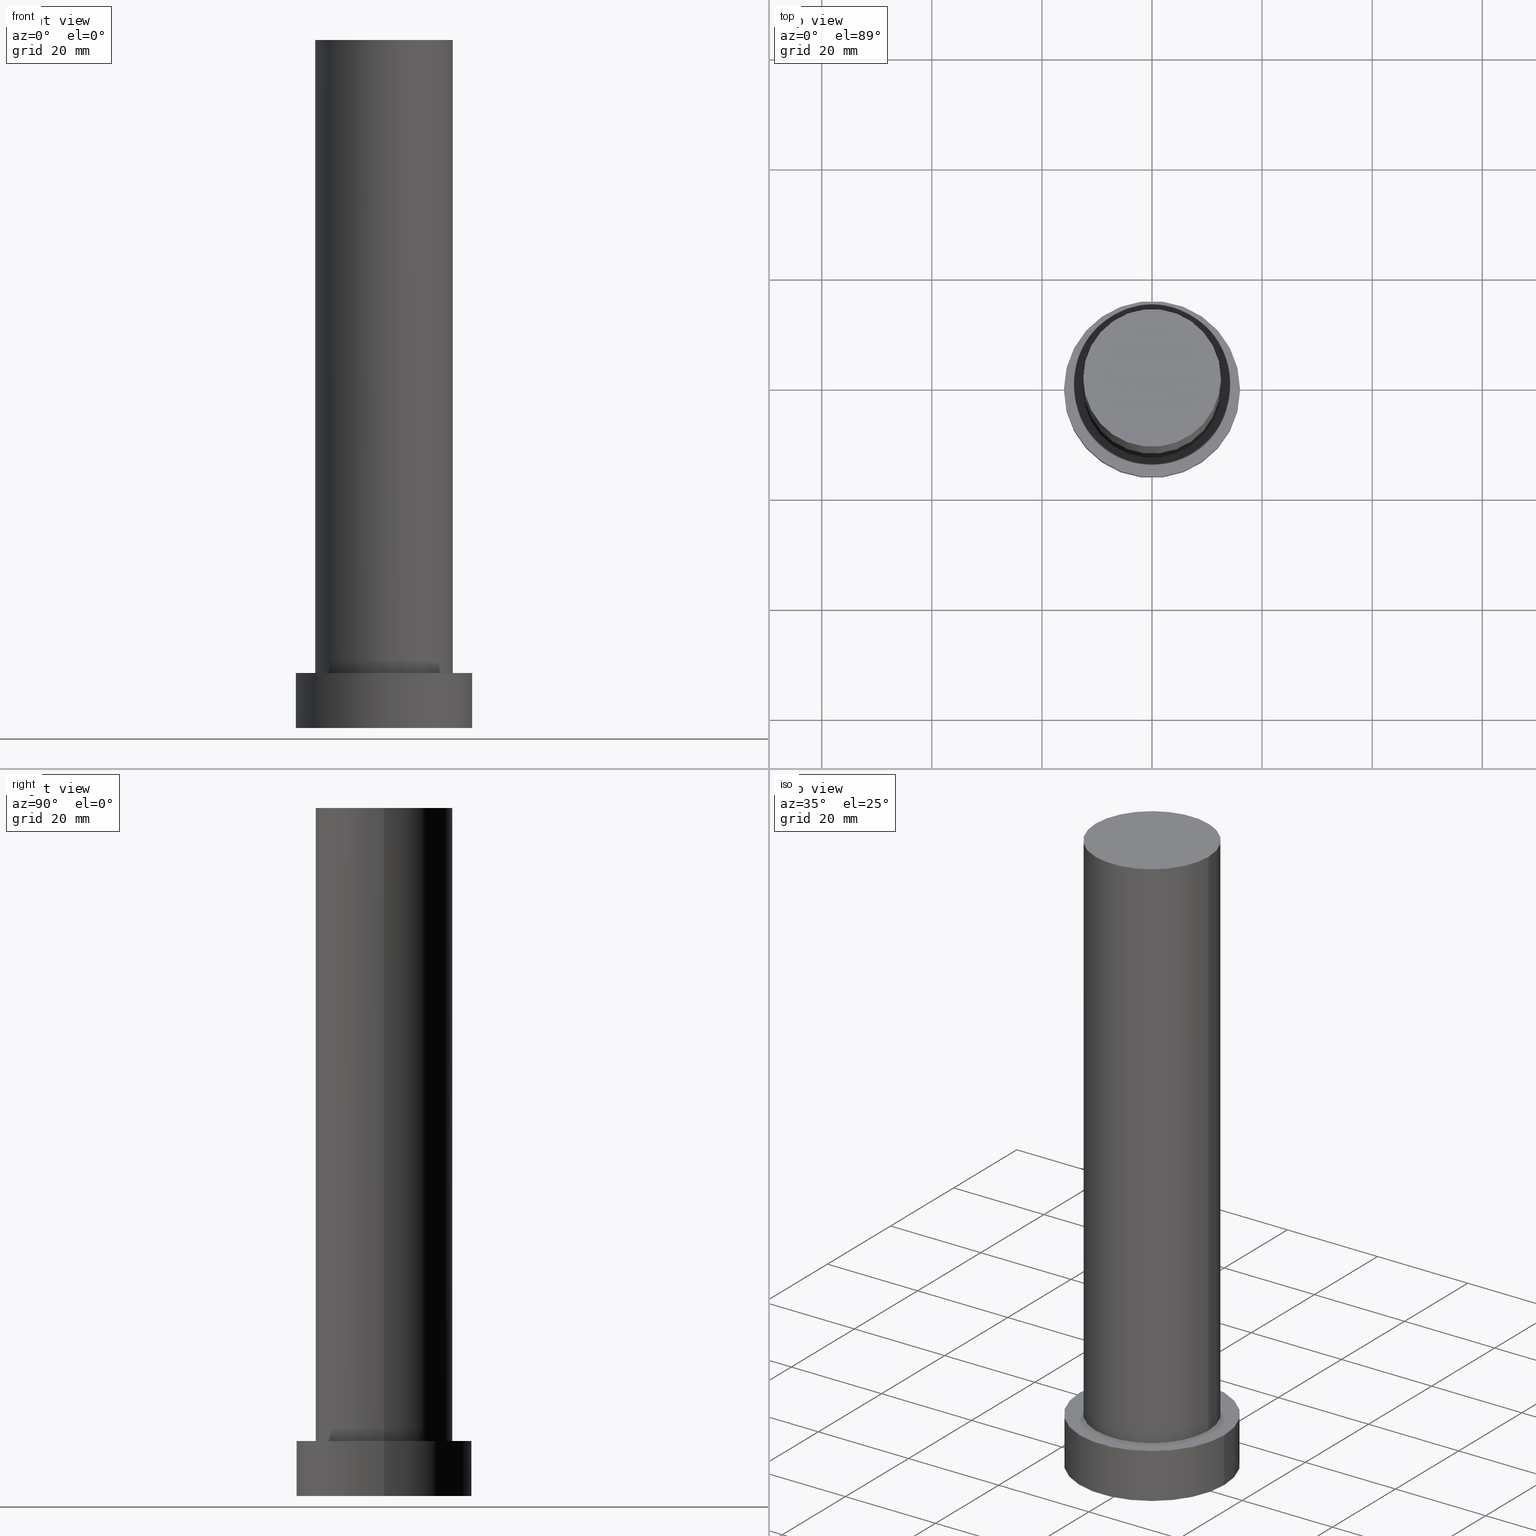
[diagram: canonical four-view strip — front | top / right | iso, engineering-drawing reading convention]
A machine part, canonical four-view strip (front | top / right | iso — engineering-drawing reading convention). The complete STEP part file that produces these views, byte-faithful:
ISO-10303-21;
HEADER;
FILE_DESCRIPTION (( 'STEP AP203' ),
    '1' );
FILE_NAME ('2aaf.STEP',
    '2023-02-12T10:30:42',
    ( '' ),
    ( '' ),
    'SwSTEP 2.0',
    'SolidWorks 2019',
    '' );
FILE_SCHEMA (( 'CONFIG_CONTROL_DESIGN' ));
ENDSEC;

DATA;
#1 = DIRECTION ( 'NONE',  ( -1.000000000000000000, 0.000000000000000000, 0.000000000000000000 ) ) ;
#2 = ORIENTED_EDGE ( 'NONE', *, *, #53, .F. ) ;
#3 = PERSON_AND_ORGANIZATION_ROLE ( 'creator' ) ;
#4 = COORDINATED_UNIVERSAL_TIME_OFFSET ( 1, 0, .AHEAD. ) ;
#5 = CALENDAR_DATE ( 2023, 12, 2 ) ;
#6 = CARTESIAN_POINT ( 'NONE',  ( 16.00000000000000000, 1.959434878635765131E-15, 0.000000000000000000 ) ) ;
#7 = CC_DESIGN_DATE_AND_TIME_ASSIGNMENT ( #169, #150, ( #107 ) ) ;
#8 = DIRECTION ( 'NONE',  ( -0.000000000000000000, -0.000000000000000000, -1.000000000000000000 ) ) ;
#9 = DIRECTION ( 'NONE',  ( 1.000000000000000000, 0.000000000000000000, 0.000000000000000000 ) ) ;
#10 = AXIS2_PLACEMENT_3D ( 'NONE', #58, #194, #1 ) ;
#11 = CYLINDRICAL_SURFACE ( 'NONE', #132, 16.00000000000000000 ) ;
#12 = FACE_OUTER_BOUND ( 'NONE', #27, .T. ) ;
#13 = DIRECTION ( 'NONE',  ( 0.000000000000000000, 0.000000000000000000, 1.000000000000000000 ) ) ;
#14 = AXIS2_PLACEMENT_3D ( 'NONE', #46, #71, #68 ) ;
#15 = LINE ( 'NONE', #227, #153 ) ;
#16 = CC_DESIGN_PERSON_AND_ORGANIZATION_ASSIGNMENT ( #125, #102, ( #78 ) ) ;
#17 = DIRECTION ( 'NONE',  ( 0.000000000000000000, 0.000000000000000000, 1.000000000000000000 ) ) ;
#18 = ORIENTED_EDGE ( 'NONE', *, *, #228, .T. ) ;
#19 = DATE_AND_TIME ( #197, #116 ) ;
#20 = EDGE_LOOP ( 'NONE', ( #247, #122 ) ) ;
#21 = AXIS2_PLACEMENT_3D ( 'NONE', #74, #210, #96 ) ;
#22 = ADVANCED_FACE ( 'NONE', ( #43 ), #129, .F. ) ;
#23 = CARTESIAN_POINT ( 'NONE',  ( 12.50000000000000000, 1.530808498934191521E-15, 10.00000000000000000 ) ) ;
#24 = EDGE_CURVE ( 'NONE', #59, #39, #85, .T. ) ;
#25 = CC_DESIGN_APPROVAL ( #93, ( #84 ) ) ;
#26 = DIRECTION ( 'NONE',  ( 1.000000000000000000, 0.000000000000000000, -0.000000000000000000 ) ) ;
#27 = EDGE_LOOP ( 'NONE', ( #76, #60, #196, #146 ) ) ;
#28 = VECTOR ( 'NONE', #250, 1000.000000000000000 ) ;
#29 = CARTESIAN_POINT ( 'NONE',  ( 16.00000000000000000, 1.959434878635765131E-15, 10.00000000000000000 ) ) ;
#30 = ADVANCED_FACE ( 'NONE', ( #186 ), #135, .T. ) ;
#31 = CARTESIAN_POINT ( 'NONE',  ( 0.000000000000000000, 0.000000000000000000, 0.000000000000000000 ) ) ;
#32 = AXIS2_PLACEMENT_3D ( 'NONE', #223, #188, #50 ) ;
#33 = PLANE ( 'NONE',  #181 ) ;
#34 = CIRCLE ( 'NONE', #138, 16.00000000000000000 ) ;
#35 = ORIENTED_EDGE ( 'NONE', *, *, #253, .T. ) ;
#36 = PERSON_AND_ORGANIZATION ( #97, #110 ) ;
#37 = PERSON_AND_ORGANIZATION_ROLE ( 'design_owner' ) ;
#38 = APPROVAL ( #62, 'NEUR�EN�' ) ;
#39 = VERTEX_POINT ( 'NONE', #187 ) ;
#40 = CALENDAR_DATE ( 2023, 12, 2 ) ;
#41 = CLOSED_SHELL ( 'NONE', ( #30, #137, #104, #185, #22, #207, #203 ) ) ;
#42 = APPROVAL_DATE_TIME ( #45, #167 ) ;
#43 = FACE_OUTER_BOUND ( 'NONE', #164, .T. ) ;
#44 = CC_DESIGN_SECURITY_CLASSIFICATION ( #107, ( #78 ) ) ;
#45 = DATE_AND_TIME ( #130, #147 ) ;
#46 = CARTESIAN_POINT ( 'NONE',  ( 0.000000000000000000, 0.000000000000000000, 125.0000000000000000 ) ) ;
#47 = AXIS2_PLACEMENT_3D ( 'NONE', #225, #205, #222 ) ;
#48 = VECTOR ( 'NONE', #243, 1000.000000000000000 ) ;
#49 = CARTESIAN_POINT ( 'NONE',  ( 0.000000000000000000, 0.000000000000000000, 10.00000000000000000 ) ) ;
#50 = DIRECTION ( 'NONE',  ( 1.000000000000000000, 0.000000000000000000, 0.000000000000000000 ) ) ;
#51 = DIRECTION ( 'NONE',  ( 0.000000000000000000, 0.000000000000000000, 1.000000000000000000 ) ) ;
#52 =( NAMED_UNIT ( * ) PLANE_ANGLE_UNIT ( ) SI_UNIT ( $, .RADIAN. ) );
#53 = EDGE_CURVE ( 'NONE', #251, #101, #177, .T. ) ;
#54 = ORIENTED_EDGE ( 'NONE', *, *, #57, .T. ) ;
#55 = APPROVAL_PERSON_ORGANIZATION ( #36, #93, #214 ) ;
#56 = ORIENTED_EDGE ( 'NONE', *, *, #237, .F. ) ;
#57 = EDGE_CURVE ( 'NONE', #101, #251, #151, .T. ) ;
#58 = CARTESIAN_POINT ( 'NONE',  ( 0.000000000000000000, 0.000000000000000000, 125.0000000000000000 ) ) ;
#59 = VERTEX_POINT ( 'NONE', #6 ) ;
#60 = ORIENTED_EDGE ( 'NONE', *, *, #253, .F. ) ;
#61 = MANIFOLD_SOLID_BREP ( 'P�idat vysunut�m3', #41 ) ;
#62 = APPROVAL_STATUS ( 'not_yet_approved' ) ;
#63 = PERSON_AND_ORGANIZATION_ROLE ( 'design_supplier' ) ;
#64 = PERSON_AND_ORGANIZATION_ROLE ( 'classification_officer' ) ;
#65 = CIRCLE ( 'NONE', #21, 16.00000000000000000 ) ;
#66 = DIRECTION ( 'NONE',  ( -0.000000000000000000, -0.000000000000000000, -1.000000000000000000 ) ) ;
#67 = CC_DESIGN_APPROVAL ( #167, ( #107 ) ) ;
#68 = DIRECTION ( 'NONE',  ( 1.000000000000000000, 0.000000000000000000, 0.000000000000000000 ) ) ;
#69 = ORIENTED_EDGE ( 'NONE', *, *, #201, .F. ) ;
#70 = CC_DESIGN_PERSON_AND_ORGANIZATION_ASSIGNMENT ( #144, #37, ( #88 ) ) ;
#71 = DIRECTION ( 'NONE',  ( 0.000000000000000000, 0.000000000000000000, 1.000000000000000000 ) ) ;
#72 = DIRECTION ( 'NONE',  ( 1.000000000000000000, 0.000000000000000000, 0.000000000000000000 ) ) ;
#73 =( GEOMETRIC_REPRESENTATION_CONTEXT ( 3 ) GLOBAL_UNCERTAINTY_ASSIGNED_CONTEXT ( ( #239 ) ) GLOBAL_UNIT_ASSIGNED_CONTEXT ( ( #99, #52, #139 ) ) REPRESENTATION_CONTEXT ( 'NONE', 'WORKASPACE' ) );
#74 = CARTESIAN_POINT ( 'NONE',  ( 0.000000000000000000, 0.000000000000000000, 10.00000000000000000 ) ) ;
#75 = EDGE_CURVE ( 'NONE', #95, #198, #170, .T. ) ;
#76 = ORIENTED_EDGE ( 'NONE', *, *, #171, .F. ) ;
#77 = AXIS2_PLACEMENT_3D ( 'NONE', #242, #154, #87 ) ;
#78 = PRODUCT_DEFINITION_FORMATION_WITH_SPECIFIED_SOURCE ( 'LIBOVOLN�', '', #88, .NOT_KNOWN. ) ;
#79 = COORDINATED_UNIVERSAL_TIME_OFFSET ( 1, 0, .AHEAD. ) ;
#80 = EDGE_LOOP ( 'NONE', ( #54, #168 ) ) ;
#81 = PERSON_AND_ORGANIZATION ( #97, #110 ) ;
#82 = CC_DESIGN_PERSON_AND_ORGANIZATION_ASSIGNMENT ( #81, #64, ( #107 ) ) ;
#83 = CALENDAR_DATE ( 2023, 12, 2 ) ;
#84 = PRODUCT_DEFINITION ( 'NEZN�M�', '', #78, #120 ) ;
#85 = CIRCLE ( 'NONE', #226, 16.00000000000000000 ) ;
#86 = CARTESIAN_POINT ( 'NONE',  ( -16.00000000000000000, 0.000000000000000000, 10.00000000000000000 ) ) ;
#87 = DIRECTION ( 'NONE',  ( 1.000000000000000000, 0.000000000000000000, -0.000000000000000000 ) ) ;
#88 = PRODUCT ( '2aaf', '2aaf', '', ( #252 ) ) ;
#89 = CARTESIAN_POINT ( 'NONE',  ( 0.000000000000000000, 0.000000000000000000, 10.00000000000000000 ) ) ;
#90 = LOCAL_TIME ( 11, 30, 42.00000000000000000, #238 ) ;
#91 = DIRECTION ( 'NONE',  ( -1.000000000000000000, 0.000000000000000000, 0.000000000000000000 ) ) ;
#92 = VERTEX_POINT ( 'NONE', #29 ) ;
#93 = APPROVAL ( #145, 'NEUR�EN�' ) ;
#94 = AXIS2_PLACEMENT_3D ( 'NONE', #224, #160, #72 ) ;
#95 = VERTEX_POINT ( 'NONE', #23 ) ;
#96 = DIRECTION ( 'NONE',  ( 1.000000000000000000, 0.000000000000000000, 0.000000000000000000 ) ) ;
#97 = PERSON ( 'NEUR�EN�', 'NEUR�EN�', 'NEUR�EN�', ('NEUR�EN�'), ('NEUR�EN�'), ('NEUR�EN�') ) ;
#98 = ORIENTED_EDGE ( 'NONE', *, *, #24, .T. ) ;
#99 =( LENGTH_UNIT ( ) NAMED_UNIT ( * ) SI_UNIT ( .MILLI., .METRE. ) );
#100 = APPROVAL_DATE_TIME ( #19, #93 ) ;
#101 = VERTEX_POINT ( 'NONE', #159 ) ;
#102 = PERSON_AND_ORGANIZATION_ROLE ( 'creator' ) ;
#103 = APPROVAL_ROLE ( '' ) ;
#104 = ADVANCED_FACE ( 'NONE', ( #12 ), #11, .T. ) ;
#105 = DATE_TIME_ROLE ( 'creation_date' ) ;
#106 = CARTESIAN_POINT ( 'NONE',  ( -12.50000000000000000, 0.000000000000000000, 125.0000000000000000 ) ) ;
#107 = SECURITY_CLASSIFICATION ( '', '', #219 ) ;
#108 = LINE ( 'NONE', #133, #48 ) ;
#109 = ORIENTED_EDGE ( 'NONE', *, *, #111, .F. ) ;
#110 = ORGANIZATION ( 'NEUR�EN�', 'NEUR�EN�', '' ) ;
#111 = EDGE_CURVE ( 'NONE', #101, #198, #134, .T. ) ;
#112 = CARTESIAN_POINT ( 'NONE',  ( 0.000000000000000000, 0.000000000000000000, 125.0000000000000000 ) ) ;
#113 = DIRECTION ( 'NONE',  ( 0.000000000000000000, 0.000000000000000000, 1.000000000000000000 ) ) ;
#114 = CIRCLE ( 'NONE', #143, 12.50000000000000000 ) ;
#115 = VERTEX_POINT ( 'NONE', #86 ) ;
#116 = LOCAL_TIME ( 11, 30, 42.00000000000000000, #121 ) ;
#117 = DIRECTION ( 'NONE',  ( 0.000000000000000000, 0.000000000000000000, 1.000000000000000000 ) ) ;
#118 = EDGE_LOOP ( 'NONE', ( #2, #141, #183, #109 ) ) ;
#119 = CYLINDRICAL_SURFACE ( 'NONE', #10, 12.50000000000000000 ) ;
#120 = DESIGN_CONTEXT ( 'detailed design', #127, 'design' ) ;
#121 = COORDINATED_UNIVERSAL_TIME_OFFSET ( 1, 0, .AHEAD. ) ;
#122 = ORIENTED_EDGE ( 'NONE', *, *, #75, .F. ) ;
#123 = VECTOR ( 'NONE', #66, 1000.000000000000000 ) ;
#124 = CC_DESIGN_APPROVAL ( #38, ( #78 ) ) ;
#125 = PERSON_AND_ORGANIZATION ( #97, #110 ) ;
#126 = CC_DESIGN_DATE_AND_TIME_ASSIGNMENT ( #241, #105, ( #84 ) ) ;
#127 = APPLICATION_CONTEXT ( 'configuration controlled 3d designs of mechanical parts and assemblies' ) ;
#128 = PERSON_AND_ORGANIZATION ( #97, #110 ) ;
#129 = PLANE ( 'NONE',  #77 ) ;
#130 = CALENDAR_DATE ( 2023, 12, 2 ) ;
#131 = DIRECTION ( 'NONE',  ( -0.000000000000000000, -0.000000000000000000, -1.000000000000000000 ) ) ;
#132 = AXIS2_PLACEMENT_3D ( 'NONE', #49, #131, #204 ) ;
#133 = CARTESIAN_POINT ( 'NONE',  ( 16.00000000000000000, 1.959434878635765131E-15, 10.00000000000000000 ) ) ;
#134 = LINE ( 'NONE', #106, #123 ) ;
#135 = CYLINDRICAL_SURFACE ( 'NONE', #244, 12.50000000000000000 ) ;
#136 = CARTESIAN_POINT ( 'NONE',  ( 0.000000000000000000, 0.000000000000000000, 10.00000000000000000 ) ) ;
#137 = ADVANCED_FACE ( 'NONE', ( #172 ), #156, .T. ) ;
#138 = AXIS2_PLACEMENT_3D ( 'NONE', #173, #117, #162 ) ;
#139 =( NAMED_UNIT ( * ) SI_UNIT ( $, .STERADIAN. ) SOLID_ANGLE_UNIT ( ) );
#140 = CARTESIAN_POINT ( 'NONE',  ( 0.000000000000000000, 0.000000000000000000, 10.00000000000000000 ) ) ;
#141 = ORIENTED_EDGE ( 'NONE', *, *, #201, .T. ) ;
#142 = APPLICATION_PROTOCOL_DEFINITION ( 'international standard', 'config_control_design', 1994, #229 ) ;
#143 = AXIS2_PLACEMENT_3D ( 'NONE', #89, #51, #9 ) ;
#144 = PERSON_AND_ORGANIZATION ( #97, #110 ) ;
#145 = APPROVAL_STATUS ( 'not_yet_approved' ) ;
#146 = ORIENTED_EDGE ( 'NONE', *, *, #192, .T. ) ;
#147 = LOCAL_TIME ( 11, 30, 42.00000000000000000, #218 ) ;
#148 = APPROVAL_STATUS ( 'not_yet_approved' ) ;
#149 = APPROVAL_ROLE ( '' ) ;
#150 = DATE_TIME_ROLE ( 'classification_date' ) ;
#151 = CIRCLE ( 'NONE', #32, 12.50000000000000000 ) ;
#152 = PERSON_AND_ORGANIZATION ( #97, #110 ) ;
#153 = VECTOR ( 'NONE', #179, 1000.000000000000000 ) ;
#154 = DIRECTION ( 'NONE',  ( 0.000000000000000000, 0.000000000000000000, 1.000000000000000000 ) ) ;
#155 = ADVANCED_BREP_SHAPE_REPRESENTATION ( '2aaf', ( #61, #191 ), #73 ) ;
#156 = CYLINDRICAL_SURFACE ( 'NONE', #47, 16.00000000000000000 ) ;
#157 = CARTESIAN_POINT ( 'NONE',  ( 0.000000000000000000, 0.000000000000000000, 125.0000000000000000 ) ) ;
#158 = CIRCLE ( 'NONE', #175, 16.00000000000000000 ) ;
#159 = CARTESIAN_POINT ( 'NONE',  ( -12.50000000000000000, 0.000000000000000000, 125.0000000000000000 ) ) ;
#160 = DIRECTION ( 'NONE',  ( 0.000000000000000000, 0.000000000000000000, 1.000000000000000000 ) ) ;
#161 = ORIENTED_EDGE ( 'NONE', *, *, #111, .T. ) ;
#162 = DIRECTION ( 'NONE',  ( 1.000000000000000000, 0.000000000000000000, 0.000000000000000000 ) ) ;
#163 = EDGE_CURVE ( 'NONE', #198, #95, #114, .T. ) ;
#164 = EDGE_LOOP ( 'NONE', ( #180, #166 ) ) ;
#165 = CARTESIAN_POINT ( 'NONE',  ( -12.50000000000000000, 0.000000000000000000, 10.00000000000000000 ) ) ;
#166 = ORIENTED_EDGE ( 'NONE', *, *, #24, .F. ) ;
#167 = APPROVAL ( #148, 'NEUR�EN�' ) ;
#168 = ORIENTED_EDGE ( 'NONE', *, *, #53, .T. ) ;
#169 = DATE_AND_TIME ( #40, #90 ) ;
#170 = CIRCLE ( 'NONE', #94, 12.50000000000000000 ) ;
#171 = EDGE_CURVE ( 'NONE', #92, #59, #108, .T. ) ;
#172 = FACE_OUTER_BOUND ( 'NONE', #235, .T. ) ;
#173 = CARTESIAN_POINT ( 'NONE',  ( 0.000000000000000000, 0.000000000000000000, 0.000000000000000000 ) ) ;
#174 = FACE_BOUND ( 'NONE', #20, .T. ) ;
#175 = AXIS2_PLACEMENT_3D ( 'NONE', #140, #13, #209 ) ;
#176 = ORIENTED_EDGE ( 'NONE', *, *, #171, .T. ) ;
#177 = CIRCLE ( 'NONE', #14, 12.50000000000000000 ) ;
#178 = DIRECTION ( 'NONE',  ( 1.000000000000000000, 0.000000000000000000, 0.000000000000000000 ) ) ;
#179 = DIRECTION ( 'NONE',  ( -0.000000000000000000, -0.000000000000000000, -1.000000000000000000 ) ) ;
#180 = ORIENTED_EDGE ( 'NONE', *, *, #192, .F. ) ;
#181 = AXIS2_PLACEMENT_3D ( 'NONE', #112, #17, #195 ) ;
#182 = PERSON_AND_ORGANIZATION ( #97, #110 ) ;
#183 = ORIENTED_EDGE ( 'NONE', *, *, #75, .T. ) ;
#184 = SHAPE_DEFINITION_REPRESENTATION ( #240, #155 ) ;
#185 = ADVANCED_FACE ( 'NONE', ( #174, #245 ), #190, .T. ) ;
#186 = FACE_OUTER_BOUND ( 'NONE', #118, .T. ) ;
#187 = CARTESIAN_POINT ( 'NONE',  ( -16.00000000000000000, 0.000000000000000000, 0.000000000000000000 ) ) ;
#188 = DIRECTION ( 'NONE',  ( 0.000000000000000000, 0.000000000000000000, 1.000000000000000000 ) ) ;
#189 = EDGE_LOOP ( 'NONE', ( #69, #246, #161, #232 ) ) ;
#190 = PLANE ( 'NONE',  #255 ) ;
#191 = AXIS2_PLACEMENT_3D ( 'NONE', #31, #113, #178 ) ;
#192 = EDGE_CURVE ( 'NONE', #39, #59, #34, .T. ) ;
#193 = CARTESIAN_POINT ( 'NONE',  ( 0.000000000000000000, 0.000000000000000000, 0.000000000000000000 ) ) ;
#194 = DIRECTION ( 'NONE',  ( -0.000000000000000000, -0.000000000000000000, -1.000000000000000000 ) ) ;
#195 = DIRECTION ( 'NONE',  ( 1.000000000000000000, 0.000000000000000000, -0.000000000000000000 ) ) ;
#196 = ORIENTED_EDGE ( 'NONE', *, *, #237, .T. ) ;
#197 = CALENDAR_DATE ( 2023, 12, 2 ) ;
#198 = VERTEX_POINT ( 'NONE', #165 ) ;
#199 = LOCAL_TIME ( 11, 30, 42.00000000000000000, #4 ) ;
#200 = APPROVAL_DATE_TIME ( #216, #38 ) ;
#201 = EDGE_CURVE ( 'NONE', #251, #95, #248, .T. ) ;
#202 = APPROVAL_PERSON_ORGANIZATION ( #152, #38, #103 ) ;
#203 = ADVANCED_FACE ( 'NONE', ( #234 ), #33, .T. ) ;
#204 = DIRECTION ( 'NONE',  ( -1.000000000000000000, 0.000000000000000000, 0.000000000000000000 ) ) ;
#205 = DIRECTION ( 'NONE',  ( -0.000000000000000000, -0.000000000000000000, -1.000000000000000000 ) ) ;
#206 = DIRECTION ( 'NONE',  ( 0.000000000000000000, 0.000000000000000000, 1.000000000000000000 ) ) ;
#207 = ADVANCED_FACE ( 'NONE', ( #254 ), #119, .T. ) ;
#208 = DIRECTION ( 'NONE',  ( 0.000000000000000000, 0.000000000000000000, 1.000000000000000000 ) ) ;
#209 = DIRECTION ( 'NONE',  ( 1.000000000000000000, 0.000000000000000000, 0.000000000000000000 ) ) ;
#210 = DIRECTION ( 'NONE',  ( 0.000000000000000000, 0.000000000000000000, 1.000000000000000000 ) ) ;
#211 = EDGE_LOOP ( 'NONE', ( #35, #18 ) ) ;
#212 = LOCAL_TIME ( 11, 30, 42.00000000000000000, #79 ) ;
#213 = APPLICATION_PROTOCOL_DEFINITION ( 'international standard', 'config_control_design', 1994, #127 ) ;
#214 = APPROVAL_ROLE ( '' ) ;
#215 = ORIENTED_EDGE ( 'NONE', *, *, #228, .F. ) ;
#216 = DATE_AND_TIME ( #83, #199 ) ;
#217 = PRODUCT_RELATED_PRODUCT_CATEGORY ( 'detail', '', ( #88 ) ) ;
#218 = COORDINATED_UNIVERSAL_TIME_OFFSET ( 1, 0, .AHEAD. ) ;
#219 = SECURITY_CLASSIFICATION_LEVEL ( 'unclassified' ) ;
#220 = CC_DESIGN_PERSON_AND_ORGANIZATION_ASSIGNMENT ( #182, #3, ( #84 ) ) ;
#221 = DIRECTION ( 'NONE',  ( 1.000000000000000000, 0.000000000000000000, 0.000000000000000000 ) ) ;
#222 = DIRECTION ( 'NONE',  ( -1.000000000000000000, 0.000000000000000000, 0.000000000000000000 ) ) ;
#223 = CARTESIAN_POINT ( 'NONE',  ( 0.000000000000000000, 0.000000000000000000, 125.0000000000000000 ) ) ;
#224 = CARTESIAN_POINT ( 'NONE',  ( 0.000000000000000000, 0.000000000000000000, 10.00000000000000000 ) ) ;
#225 = CARTESIAN_POINT ( 'NONE',  ( 0.000000000000000000, 0.000000000000000000, 10.00000000000000000 ) ) ;
#226 = AXIS2_PLACEMENT_3D ( 'NONE', #193, #206, #221 ) ;
#227 = CARTESIAN_POINT ( 'NONE',  ( -16.00000000000000000, 0.000000000000000000, 10.00000000000000000 ) ) ;
#228 = EDGE_CURVE ( 'NONE', #92, #115, #158, .T. ) ;
#229 = APPLICATION_CONTEXT ( 'configuration controlled 3d designs of mechanical parts and assemblies' ) ;
#230 = CARTESIAN_POINT ( 'NONE',  ( 12.50000000000000000, 1.530808498934191521E-15, 125.0000000000000000 ) ) ;
#231 = CARTESIAN_POINT ( 'NONE',  ( 12.50000000000000000, 1.530808498934191521E-15, 125.0000000000000000 ) ) ;
#232 = ORIENTED_EDGE ( 'NONE', *, *, #163, .T. ) ;
#233 = CC_DESIGN_PERSON_AND_ORGANIZATION_ASSIGNMENT ( #128, #63, ( #78 ) ) ;
#234 = FACE_OUTER_BOUND ( 'NONE', #80, .T. ) ;
#235 = EDGE_LOOP ( 'NONE', ( #215, #176, #98, #56 ) ) ;
#236 = PERSON_AND_ORGANIZATION ( #97, #110 ) ;
#237 = EDGE_CURVE ( 'NONE', #115, #39, #15, .T. ) ;
#238 = COORDINATED_UNIVERSAL_TIME_OFFSET ( 1, 0, .AHEAD. ) ;
#239 = UNCERTAINTY_MEASURE_WITH_UNIT (LENGTH_MEASURE( 1.000000000000000082E-05 ), #99, 'distance_accuracy_value', 'NONE');
#240 = PRODUCT_DEFINITION_SHAPE ( 'NONE', 'NONE',  #84 ) ;
#241 = DATE_AND_TIME ( #5, #212 ) ;
#242 = CARTESIAN_POINT ( 'NONE',  ( 0.000000000000000000, 0.000000000000000000, 0.000000000000000000 ) ) ;
#243 = DIRECTION ( 'NONE',  ( -0.000000000000000000, -0.000000000000000000, -1.000000000000000000 ) ) ;
#244 = AXIS2_PLACEMENT_3D ( 'NONE', #157, #8, #91 ) ;
#245 = FACE_OUTER_BOUND ( 'NONE', #211, .T. ) ;
#246 = ORIENTED_EDGE ( 'NONE', *, *, #57, .F. ) ;
#247 = ORIENTED_EDGE ( 'NONE', *, *, #163, .F. ) ;
#248 = LINE ( 'NONE', #231, #28 ) ;
#249 = APPROVAL_PERSON_ORGANIZATION ( #236, #167, #149 ) ;
#250 = DIRECTION ( 'NONE',  ( -0.000000000000000000, -0.000000000000000000, -1.000000000000000000 ) ) ;
#251 = VERTEX_POINT ( 'NONE', #230 ) ;
#252 = MECHANICAL_CONTEXT ( 'NONE', #229, 'mechanical' ) ;
#253 = EDGE_CURVE ( 'NONE', #115, #92, #65, .T. ) ;
#254 = FACE_OUTER_BOUND ( 'NONE', #189, .T. ) ;
#255 = AXIS2_PLACEMENT_3D ( 'NONE', #136, #208, #26 ) ;
ENDSEC;
END-ISO-10303-21;
